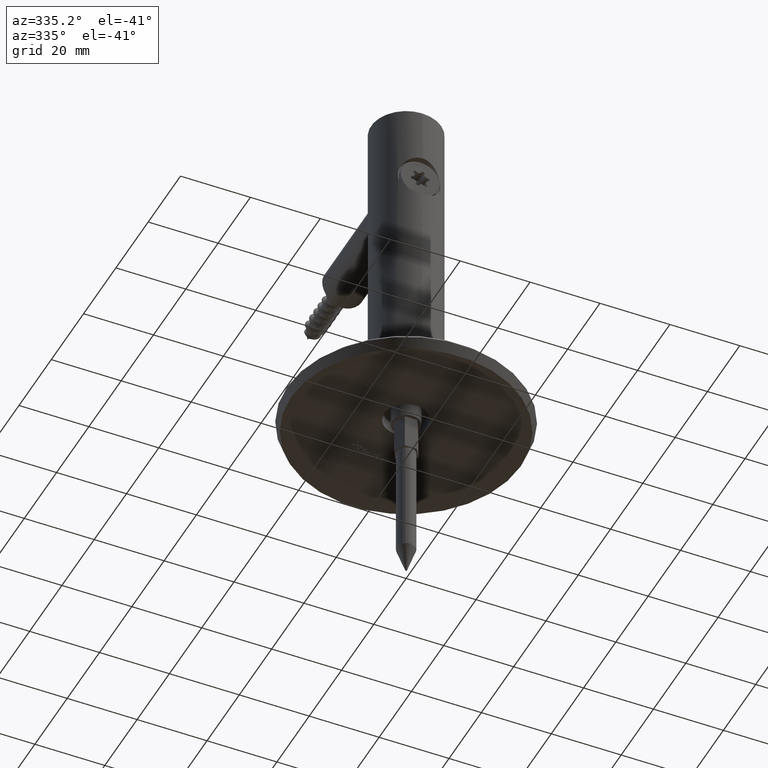
[diagram: clean part render]
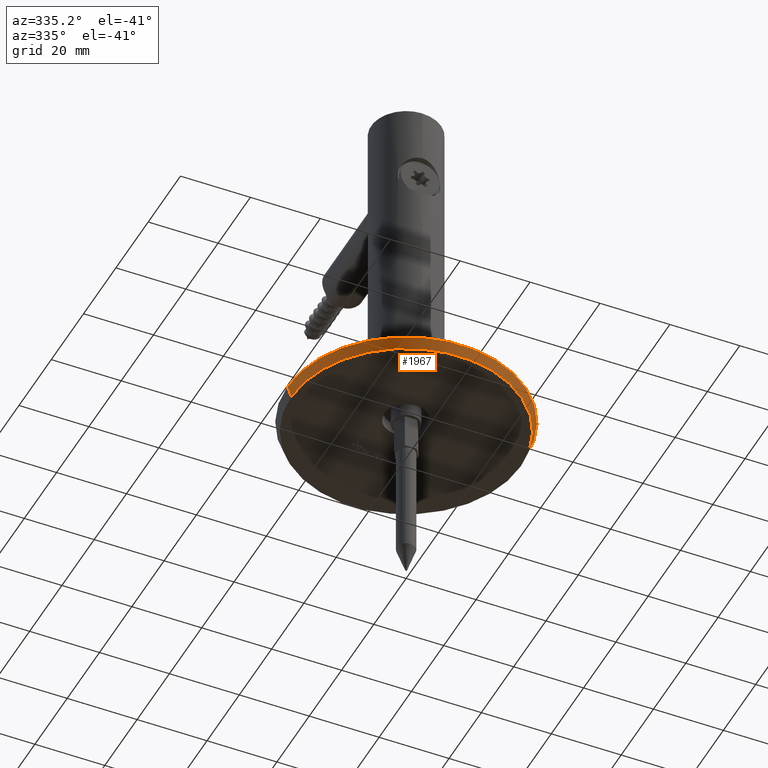
[diagram: same view with one face highlighted and labeled with its STEP entity id]
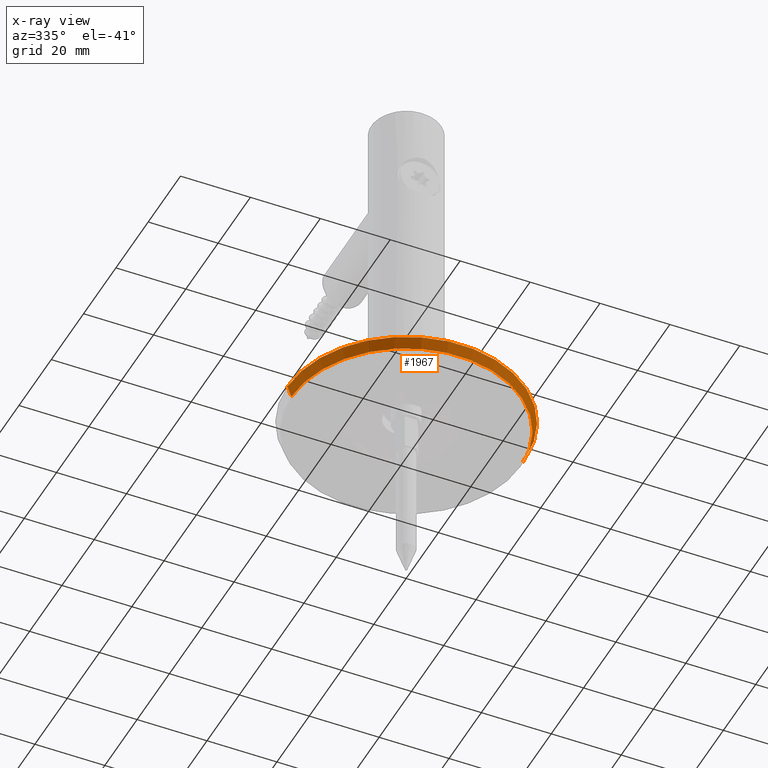
[diagram: x-ray of the same camera — body ghosted, the highlighted face saturated]
A machine part, auxiliary view. The second image highlights one B-rep face of the part: STEP entity #1967.
The next image is the same camera in x-ray: the body ghosted, the highlighted face saturated — about 0% of this face is hidden behind the body in this view.
In plain terms, the highlighted conical surface has half-angle 21.287 deg.
Its self-contained STEP definition (entity closure, byte-faithful):
#1385 = DIRECTION ( 'NONE',  ( -1.000000000000000000, 0.000000000000000000, 0.000000000000000000 ) ) ;
#1729 = DIRECTION ( 'NONE',  ( -1.000000000000000000, 0.000000000000000000, 0.000000000000000000 ) ) ;
#1967 = ADVANCED_FACE ( 'NONE', ( #29483 ), #40429, .T. ) ;
#3035 = VERTEX_POINT ( 'NONE', #40199 ) ;
#4259 = VERTEX_POINT ( 'NONE', #38279 ) ;
#5153 = VERTEX_POINT ( 'NONE', #42075 ) ;
#6537 = VECTOR ( 'NONE', #32237, 1000.000000000000000 ) ;
#8646 = CARTESIAN_POINT ( 'NONE',  ( 7.761254698396231712E-19, -4.142427981893799682, 0.000000000000000000 ) ) ;
#8730 = ORIENTED_EDGE ( 'NONE', *, *, #40826, .F. ) ;
#9102 = LINE ( 'NONE', #18764, #6537 ) ;
#11078 = EDGE_CURVE ( 'NONE', #21315, #5153, #28354, .T. ) ;
#13959 = CARTESIAN_POINT ( 'NONE',  ( 7.761254698396231712E-19, -4.142427981893799682, 0.000000000000000000 ) ) ;
#14995 = DIRECTION ( 'NONE',  ( -1.000000000000000000, 0.000000000000000000, 0.000000000000000000 ) ) ;
#15019 = CARTESIAN_POINT ( 'NONE',  ( 2.157323450251809556E-19, -1.151432000829118785, 0.000000000000000000 ) ) ;
#17744 = ORIENTED_EDGE ( 'NONE', *, *, #37849, .T. ) ;
#18764 = CARTESIAN_POINT ( 'NONE',  ( 32.83464896222004370, -4.142427981893799682, 4.021084775270973901E-15 ) ) ;
#20437 = CARTESIAN_POINT ( 'NONE',  ( -32.83464896222003659, -4.142427981893796129, -4.021084775270976268E-15 ) ) ;
#21315 = VERTEX_POINT ( 'NONE', #20437 ) ;
#22712 = EDGE_LOOP ( 'NONE', ( #23910, #17744, #8730, #35181 ) ) ;
#23769 = AXIS2_PLACEMENT_3D ( 'NONE', #8646, #41867, #14995 ) ;
#23910 = ORIENTED_EDGE ( 'NONE', *, *, #11078, .T. ) ;
#24393 = EDGE_CURVE ( 'NONE', #21315, #3035, #33145, .T. ) ;
#24766 = AXIS2_PLACEMENT_3D ( 'NONE', #13959, #38022, #1385 ) ;
#28354 = CIRCLE ( 'NONE', #23769, 32.83464896222004370 ) ;
#29483 = FACE_OUTER_BOUND ( 'NONE', #22712, .T. ) ;
#31503 = CARTESIAN_POINT ( 'NONE',  ( -32.83464896222004370, -4.142427981893799682, 0.000000000000000000 ) ) ;
#32237 = DIRECTION ( 'NONE',  ( 0.3630377064735174630, 0.9317744489298084298, 4.445929652025895394E-17 ) ) ;
#33145 = LINE ( 'NONE', #31503, #35212 ) ;
#34404 = DIRECTION ( 'NONE',  ( -0.3630377064735174630, 0.9317744489298084298, 0.000000000000000000 ) ) ;
#34774 = AXIS2_PLACEMENT_3D ( 'NONE', #15019, #37953, #1729 ) ;
#35181 = ORIENTED_EDGE ( 'NONE', *, *, #24393, .F. ) ;
#35212 = VECTOR ( 'NONE', #34404, 1000.000000000000000 ) ;
#36983 = CIRCLE ( 'NONE', #34774, 34.00000000000002842 ) ;
#37849 = EDGE_CURVE ( 'NONE', #5153, #4259, #9102, .T. ) ;
#37953 = DIRECTION ( 'NONE',  ( -1.873600393855974325E-19, 1.000000000000000000, -0.000000000000000000 ) ) ;
#38022 = DIRECTION ( 'NONE',  ( -1.873600393855974325E-19, 1.000000000000000000, -0.000000000000000000 ) ) ;
#38279 = CARTESIAN_POINT ( 'NONE',  ( 34.00000000000002842, -1.151432000829118785, 4.163799117101004504E-15 ) ) ;
#40199 = CARTESIAN_POINT ( 'NONE',  ( -34.00000000000002842, -1.151432000829118785, 0.000000000000000000 ) ) ;
#40429 = CONICAL_SURFACE ( 'NONE', #24766, 32.83464896222004370, 0.3715259619799057278 ) ;
#40826 = EDGE_CURVE ( 'NONE', #3035, #4259, #36983, .T. ) ;
#41867 = DIRECTION ( 'NONE',  ( -1.873600393855974325E-19, 1.000000000000000000, -0.000000000000000000 ) ) ;
#42075 = CARTESIAN_POINT ( 'NONE',  ( 32.83464896222006502, -4.142427981893796129, 0.000000000000000000 ) ) ;